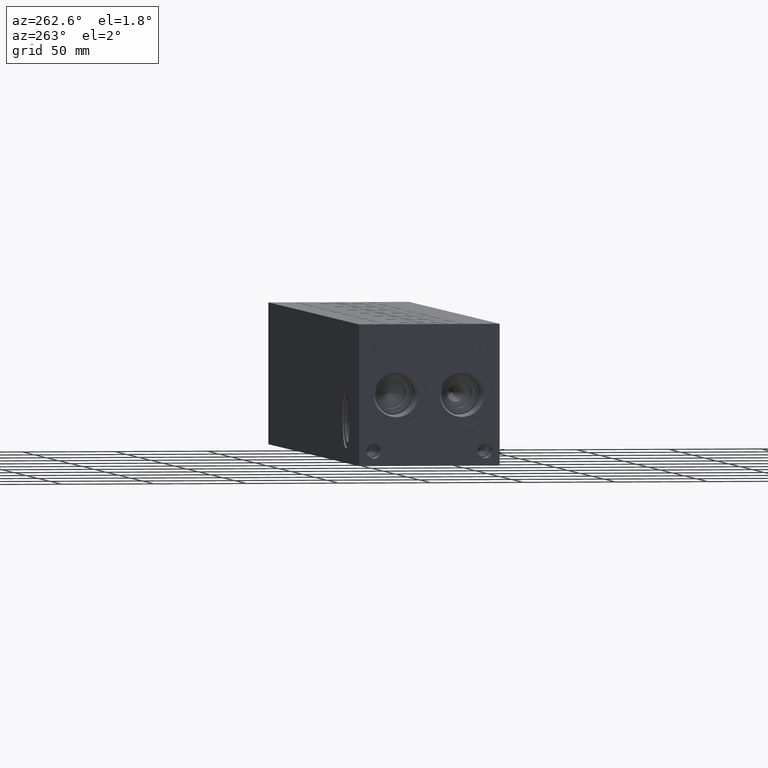
[diagram: clean part render]
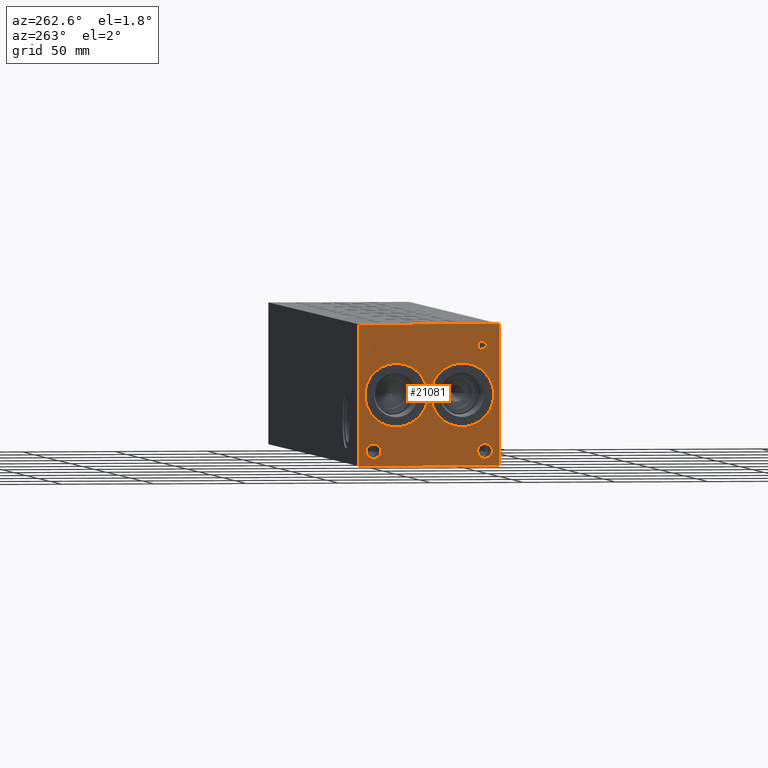
[diagram: same view with one face highlighted and labeled with its STEP entity id]
A machine part, auxiliary view. The second image highlights one B-rep face of the part: STEP entity #21081.
In plain terms, the highlighted planar face has unit normal (-1, 0, 0).
Its self-contained STEP definition (entity closure, byte-faithful):
#406=CIRCLE('',#22017,17.0688);
#407=CIRCLE('',#22018,17.0688);
#408=CIRCLE('',#22019,17.0688);
#409=CIRCLE('',#22020,17.0688);
#410=CIRCLE('',#22021,3.9624);
#411=CIRCLE('',#22022,3.9624);
#412=CIRCLE('',#22023,3.9624);
#413=CIRCLE('',#22024,3.9624);
#1210=FACE_BOUND('',#3994,.T.);
#1211=FACE_BOUND('',#3995,.T.);
#1212=FACE_BOUND('',#3996,.T.);
#1213=FACE_BOUND('',#3997,.T.);
#1214=FACE_BOUND('',#3998,.T.);
#1215=FACE_BOUND('',#3999,.T.);
#1836=B_SPLINE_CURVE_WITH_KNOTS('',2,(#35181,#35182,#35183,#35184),
 .UNSPECIFIED.,.F.,.F.,(3,1,3),(0.,1.,2.),.UNSPECIFIED.);
#1838=B_SPLINE_CURVE_WITH_KNOTS('',2,(#35202,#35203,#35204,#35205),
 .UNSPECIFIED.,.F.,.F.,(3,1,3),(0.,1.,2.),.UNSPECIFIED.);
#1840=B_SPLINE_CURVE_WITH_KNOTS('',2,(#35251,#35252,#35253,#35254),
 .UNSPECIFIED.,.F.,.F.,(3,1,3),(0.,1.,2.),.UNSPECIFIED.);
#1842=B_SPLINE_CURVE_WITH_KNOTS('',2,(#35269,#35270,#35271,#35272),
 .UNSPECIFIED.,.F.,.F.,(3,1,3),(0.,1.,2.),.UNSPECIFIED.);
#2777=FACE_OUTER_BOUND('',#3993,.T.);
#3993=EDGE_LOOP('',(#16927,#16928,#16929,#16930));
#3994=EDGE_LOOP('',(#16931,#16932));
#3995=EDGE_LOOP('',(#16933,#16934));
#3996=EDGE_LOOP('',(#16935,#16936));
#3997=EDGE_LOOP('',(#16937,#16938));
#3998=EDGE_LOOP('',(#16939,#16940,#16941,#16942,#16943,#16944,#16945,#16946));
#3999=EDGE_LOOP('',(#16947,#16948,#16949,#16950,#16951,#16952,#16953,#16954,
#16955));
#4873=LINE('',#30684,#6628);
#5933=LINE('',#35214,#7688);
#5936=LINE('',#35220,#7691);
#5939=LINE('',#35226,#7694);
#5942=LINE('',#35232,#7697);
#5945=LINE('',#35238,#7700);
#5949=LINE('',#35280,#7704);
#5950=LINE('',#35282,#7705);
#5951=LINE('',#35283,#7706);
#5952=LINE('',#35302,#7707);
#5953=LINE('',#35304,#7708);
#5954=LINE('',#35306,#7709);
#5955=LINE('',#35308,#7710);
#5956=LINE('',#35310,#7711);
#5957=LINE('',#35312,#7712);
#5958=LINE('',#35314,#7713);
#5959=LINE('',#35315,#7714);
#6628=VECTOR('',#23619,10.);
#7688=VECTOR('',#25481,10.);
#7691=VECTOR('',#25486,10.);
#7694=VECTOR('',#25491,10.);
#7697=VECTOR('',#25496,10.);
#7700=VECTOR('',#25501,10.);
#7704=VECTOR('',#25509,10.);
#7705=VECTOR('',#25510,10.);
#7706=VECTOR('',#25511,10.);
#7707=VECTOR('',#25528,10.);
#7708=VECTOR('',#25529,10.);
#7709=VECTOR('',#25530,10.);
#7710=VECTOR('',#25531,10.);
#7711=VECTOR('',#25532,10.);
#7712=VECTOR('',#25533,10.);
#7713=VECTOR('',#25534,10.);
#7714=VECTOR('',#25535,10.);
#8429=VERTEX_POINT('',#30677);
#8432=VERTEX_POINT('',#30682);
#9351=VERTEX_POINT('',#35179);
#9352=VERTEX_POINT('',#35180);
#9355=VERTEX_POINT('',#35201);
#9357=VERTEX_POINT('',#35213);
#9359=VERTEX_POINT('',#35219);
#9361=VERTEX_POINT('',#35225);
#9363=VERTEX_POINT('',#35231);
#9365=VERTEX_POINT('',#35237);
#9367=VERTEX_POINT('',#35250);
#9369=VERTEX_POINT('',#35279);
#9370=VERTEX_POINT('',#35281);
#9371=VERTEX_POINT('',#35284);
#9372=VERTEX_POINT('',#35285);
#9373=VERTEX_POINT('',#35288);
#9374=VERTEX_POINT('',#35289);
#9375=VERTEX_POINT('',#35292);
#9376=VERTEX_POINT('',#35293);
#9377=VERTEX_POINT('',#35296);
#9378=VERTEX_POINT('',#35297);
#9379=VERTEX_POINT('',#35300);
#9380=VERTEX_POINT('',#35301);
#9381=VERTEX_POINT('',#35303);
#9382=VERTEX_POINT('',#35305);
#9383=VERTEX_POINT('',#35307);
#9384=VERTEX_POINT('',#35309);
#9385=VERTEX_POINT('',#35311);
#9386=VERTEX_POINT('',#35313);
#10707=EDGE_CURVE('',#8429,#8432,#4873,.T.);
#12066=EDGE_CURVE('',#9351,#9352,#1836,.T.);
#12070=EDGE_CURVE('',#9355,#9351,#1838,.T.);
#12073=EDGE_CURVE('',#9357,#9355,#5933,.T.);
#12076=EDGE_CURVE('',#9359,#9357,#5936,.T.);
#12079=EDGE_CURVE('',#9361,#9359,#5939,.T.);
#12082=EDGE_CURVE('',#9363,#9361,#5942,.T.);
#12085=EDGE_CURVE('',#9365,#9363,#5945,.T.);
#12088=EDGE_CURVE('',#9367,#9365,#1840,.T.);
#12091=EDGE_CURVE('',#9352,#9367,#1842,.T.);
#12093=EDGE_CURVE('',#9369,#8429,#5949,.T.);
#12094=EDGE_CURVE('',#9370,#8432,#5950,.T.);
#12095=EDGE_CURVE('',#9369,#9370,#5951,.T.);
#12096=EDGE_CURVE('',#9371,#9372,#406,.T.);
#12097=EDGE_CURVE('',#9372,#9371,#407,.T.);
#12098=EDGE_CURVE('',#9373,#9374,#408,.T.);
#12099=EDGE_CURVE('',#9374,#9373,#409,.T.);
#12100=EDGE_CURVE('',#9375,#9376,#410,.T.);
#12101=EDGE_CURVE('',#9376,#9375,#411,.T.);
#12102=EDGE_CURVE('',#9377,#9378,#412,.T.);
#12103=EDGE_CURVE('',#9378,#9377,#413,.T.);
#12104=EDGE_CURVE('',#9379,#9380,#5952,.T.);
#12105=EDGE_CURVE('',#9380,#9381,#5953,.T.);
#12106=EDGE_CURVE('',#9381,#9382,#5954,.T.);
#12107=EDGE_CURVE('',#9382,#9383,#5955,.T.);
#12108=EDGE_CURVE('',#9383,#9384,#5956,.T.);
#12109=EDGE_CURVE('',#9384,#9385,#5957,.T.);
#12110=EDGE_CURVE('',#9385,#9386,#5958,.T.);
#12111=EDGE_CURVE('',#9386,#9379,#5959,.T.);
#16927=ORIENTED_EDGE('',*,*,#12093,.T.);
#16928=ORIENTED_EDGE('',*,*,#10707,.T.);
#16929=ORIENTED_EDGE('',*,*,#12094,.F.);
#16930=ORIENTED_EDGE('',*,*,#12095,.F.);
#16931=ORIENTED_EDGE('',*,*,#12096,.T.);
#16932=ORIENTED_EDGE('',*,*,#12097,.T.);
#16933=ORIENTED_EDGE('',*,*,#12098,.T.);
#16934=ORIENTED_EDGE('',*,*,#12099,.T.);
#16935=ORIENTED_EDGE('',*,*,#12100,.T.);
#16936=ORIENTED_EDGE('',*,*,#12101,.T.);
#16937=ORIENTED_EDGE('',*,*,#12102,.T.);
#16938=ORIENTED_EDGE('',*,*,#12103,.T.);
#16939=ORIENTED_EDGE('',*,*,#12104,.T.);
#16940=ORIENTED_EDGE('',*,*,#12105,.T.);
#16941=ORIENTED_EDGE('',*,*,#12106,.T.);
#16942=ORIENTED_EDGE('',*,*,#12107,.T.);
#16943=ORIENTED_EDGE('',*,*,#12108,.T.);
#16944=ORIENTED_EDGE('',*,*,#12109,.T.);
#16945=ORIENTED_EDGE('',*,*,#12110,.T.);
#16946=ORIENTED_EDGE('',*,*,#12111,.T.);
#16947=ORIENTED_EDGE('',*,*,#12066,.T.);
#16948=ORIENTED_EDGE('',*,*,#12091,.T.);
#16949=ORIENTED_EDGE('',*,*,#12088,.T.);
#16950=ORIENTED_EDGE('',*,*,#12085,.T.);
#16951=ORIENTED_EDGE('',*,*,#12082,.T.);
#16952=ORIENTED_EDGE('',*,*,#12079,.T.);
#16953=ORIENTED_EDGE('',*,*,#12076,.T.);
#16954=ORIENTED_EDGE('',*,*,#12073,.T.);
#16955=ORIENTED_EDGE('',*,*,#12070,.T.);
#19638=PLANE('',#22016);
#21081=ADVANCED_FACE('',(#2777,#1210,#1211,#1212,#1213,#1214,#1215),#19638,
 .T.);
#22016=AXIS2_PLACEMENT_3D('',#35278,#25507,#25508);
#22017=AXIS2_PLACEMENT_3D('',#35286,#25512,#25513);
#22018=AXIS2_PLACEMENT_3D('',#35287,#25514,#25515);
#22019=AXIS2_PLACEMENT_3D('',#35290,#25516,#25517);
#22020=AXIS2_PLACEMENT_3D('',#35291,#25518,#25519);
#22021=AXIS2_PLACEMENT_3D('',#35294,#25520,#25521);
#22022=AXIS2_PLACEMENT_3D('',#35295,#25522,#25523);
#22023=AXIS2_PLACEMENT_3D('',#35298,#25524,#25525);
#22024=AXIS2_PLACEMENT_3D('',#35299,#25526,#25527);
#23619=DIRECTION('',(0.,0.,1.));
#25481=DIRECTION('',(0.,-1.,-5.56775304226775E-15));
#25486=DIRECTION('',(0.,-3.14708893596576E-15,1.));
#25491=DIRECTION('',(0.,1.,0.));
#25496=DIRECTION('',(0.,3.75218139805001E-15,-1.));
#25501=DIRECTION('',(0.,1.,0.));
#25507=DIRECTION('center_axis',(-1.,0.,0.));
#25508=DIRECTION('ref_axis',(0.,-1.,0.));
#25509=DIRECTION('',(0.,-1.,0.));
#25510=DIRECTION('',(0.,-1.,0.));
#25511=DIRECTION('',(0.,0.,1.));
#25512=DIRECTION('center_axis',(1.,0.,0.));
#25513=DIRECTION('ref_axis',(0.,0.,1.));
#25514=DIRECTION('center_axis',(1.,0.,0.));
#25515=DIRECTION('ref_axis',(0.,0.,1.));
#25516=DIRECTION('center_axis',(1.,0.,0.));
#25517=DIRECTION('ref_axis',(0.,1.,0.));
#25518=DIRECTION('center_axis',(1.,0.,0.));
#25519=DIRECTION('ref_axis',(0.,1.,0.));
#25520=DIRECTION('center_axis',(1.,0.,0.));
#25521=DIRECTION('ref_axis',(0.,1.,0.));
#25522=DIRECTION('center_axis',(1.,0.,0.));
#25523=DIRECTION('ref_axis',(0.,1.,0.));
#25524=DIRECTION('center_axis',(1.,0.,0.));
#25525=DIRECTION('ref_axis',(0.,1.,0.));
#25526=DIRECTION('center_axis',(1.,0.,0.));
#25527=DIRECTION('ref_axis',(0.,1.,0.));
#25528=DIRECTION('',(0.,1.,0.));
#25529=DIRECTION('',(0.,-3.17280044688052E-15,1.));
#25530=DIRECTION('',(0.,1.,4.16909044227779E-15));
#25531=DIRECTION('',(0.,0.,1.));
#25532=DIRECTION('',(0.,-1.,-3.47984565141734E-15));
#25533=DIRECTION('',(0.,0.,-1.));
#25534=DIRECTION('',(0.,1.,4.16909044227778E-15));
#25535=DIRECTION('',(0.,3.17280044688052E-15,-1.));
#30677=CARTESIAN_POINT('',(0.,0.,0.));
#30682=CARTESIAN_POINT('',(0.,0.,76.2));
#30684=CARTESIAN_POINT('',(0.,0.,0.));
#35179=CARTESIAN_POINT('',(0.,8.00568279764059,66.2787681439707));
#35180=CARTESIAN_POINT('',(0.,7.24924034546799,64.7607373726039));
#35181=CARTESIAN_POINT('Ctrl Pts',(0.,8.00568279764059,66.2787681439707));
#35182=CARTESIAN_POINT('Ctrl Pts',(0.,7.65061797315141,66.0369123939564));
#35183=CARTESIAN_POINT('Ctrl Pts',(0.,7.24924034546799,65.2907616758269));
#35184=CARTESIAN_POINT('Ctrl Pts',(0.,7.24924034546799,64.7607373726039));
#35201=CARTESIAN_POINT('',(0.,9.66779784561167,66.6749999046326));
#35202=CARTESIAN_POINT('Ctrl Pts',(0.,9.66779784561167,66.6749999046326));
#35203=CARTESIAN_POINT('Ctrl Pts',(0.,9.10175247323762,66.6749999046326));
#35204=CARTESIAN_POINT('Ctrl Pts',(0.,8.30928895191395,66.4897486918556));
#35205=CARTESIAN_POINT('Ctrl Pts',(0.,8.00568279764059,66.2787681439707));
#35213=CARTESIAN_POINT('',(0.,11.2630166223022,66.6749999046326));
#35214=CARTESIAN_POINT('',(0.,43.7315083111509,66.6749999046328));
#35219=CARTESIAN_POINT('',(0.,11.2630166223022,60.325));
#35220=CARTESIAN_POINT('',(0.,11.2630166223023,30.1624999999999));
#35225=CARTESIAN_POINT('',(0.,10.4190944307627,60.325));
#35226=CARTESIAN_POINT('',(0.,43.3095472153814,60.325));
#35231=CARTESIAN_POINT('',(0.,10.4190944307627,62.6920988299279));
#35232=CARTESIAN_POINT('',(0.,10.4190944307628,31.3460494149638));
#35237=CARTESIAN_POINT('',(0.,9.70381891476276,62.6920988299279));
#35238=CARTESIAN_POINT('',(0.,42.9519094573814,62.6920988299279));
#35250=CARTESIAN_POINT('',(0.,7.80499398379889,63.3507698086904));
#35251=CARTESIAN_POINT('Ctrl Pts',(0.,7.80499398379889,63.3507698086904));
#35252=CARTESIAN_POINT('Ctrl Pts',(0.,8.13432947318016,63.0265801863307));
#35253=CARTESIAN_POINT('Ctrl Pts',(0.,9.0245644679139,62.6920988299278));
#35254=CARTESIAN_POINT('Ctrl Pts',(0.,9.70381891476276,62.6920988299279));
#35269=CARTESIAN_POINT('Ctrl Pts',(0.,7.24924034546799,64.7607373726039));
#35270=CARTESIAN_POINT('Ctrl Pts',(0.,7.249240345468,64.3490680108773));
#35271=CARTESIAN_POINT('Ctrl Pts',(0.,7.54255476569819,63.6080631597695));
#35272=CARTESIAN_POINT('Ctrl Pts',(0.,7.80499398379889,63.3507698086904));
#35278=CARTESIAN_POINT('Origin',(0.,76.2,0.));
#35279=CARTESIAN_POINT('',(0.,76.2,0.));
#35280=CARTESIAN_POINT('',(0.,76.2,0.));
#35281=CARTESIAN_POINT('',(0.,76.2,76.2));
#35282=CARTESIAN_POINT('',(0.,76.2,76.2));
#35283=CARTESIAN_POINT('',(0.,76.2,0.));
#35284=CARTESIAN_POINT('',(0.,55.9562,55.1688));
#35285=CARTESIAN_POINT('',(0.,55.9562,21.0312));
#35286=CARTESIAN_POINT('Origin',(0.,55.9562,38.1));
#35287=CARTESIAN_POINT('Origin',(0.,55.9562,38.1));
#35288=CARTESIAN_POINT('',(0.,37.3126,38.1));
#35289=CARTESIAN_POINT('',(0.,3.175,38.1));
#35290=CARTESIAN_POINT('Origin',(0.,20.2438,38.1));
#35291=CARTESIAN_POINT('Origin',(0.,20.2438,38.1));
#35292=CARTESIAN_POINT('',(0.,72.2376,7.92480000000001));
#35293=CARTESIAN_POINT('',(0.,64.3128,7.92480000000001));
#35294=CARTESIAN_POINT('Origin',(0.,68.2752,7.92480000000001));
#35295=CARTESIAN_POINT('Origin',(0.,68.2752,7.92480000000001));
#35296=CARTESIAN_POINT('',(0.,11.8872,7.92480000000001));
#35297=CARTESIAN_POINT('',(0.,3.9624,7.92480000000001));
#35298=CARTESIAN_POINT('Origin',(0.,7.9248,7.92480000000001));
#35299=CARTESIAN_POINT('Origin',(0.,7.9248,7.92480000000001));
#35300=CARTESIAN_POINT('',(0.,67.674584728547,60.325));
#35301=CARTESIAN_POINT('',(0.,68.5185069200865,60.325));
#35302=CARTESIAN_POINT('',(0.,71.9372923642735,60.325));
#35303=CARTESIAN_POINT('',(0.,68.5185069200865,65.9237033194815));
#35304=CARTESIAN_POINT('',(0.,68.5185069200866,30.1625));
#35305=CARTESIAN_POINT('',(0.,70.6488958670216,65.9237033194816));
#35306=CARTESIAN_POINT('',(0.,72.3592534600431,65.9237033194816));
#35307=CARTESIAN_POINT('',(0.,70.6488958670216,66.6749999046326));
#35308=CARTESIAN_POINT('',(0.,70.6488958670216,32.9618516597408));
#35309=CARTESIAN_POINT('',(0.,65.5441957816119,66.6749999046326));
#35310=CARTESIAN_POINT('',(0.,73.4244479335107,66.6749999046326));
#35311=CARTESIAN_POINT('',(0.,65.5441957816119,65.9237033194815));
#35312=CARTESIAN_POINT('',(0.,65.5441957816119,33.3374999523163));
#35313=CARTESIAN_POINT('',(0.,67.674584728547,65.9237033194815));
#35314=CARTESIAN_POINT('',(0.,70.8720978908058,65.9237033194816));
#35315=CARTESIAN_POINT('',(0.,67.6745847285471,32.9618516597408));